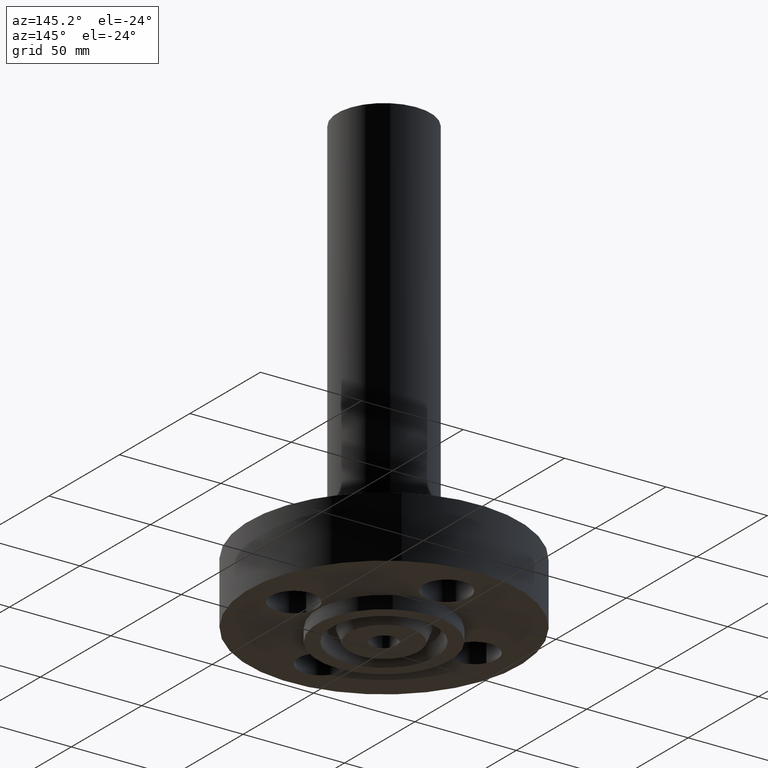
[diagram: clean part render]
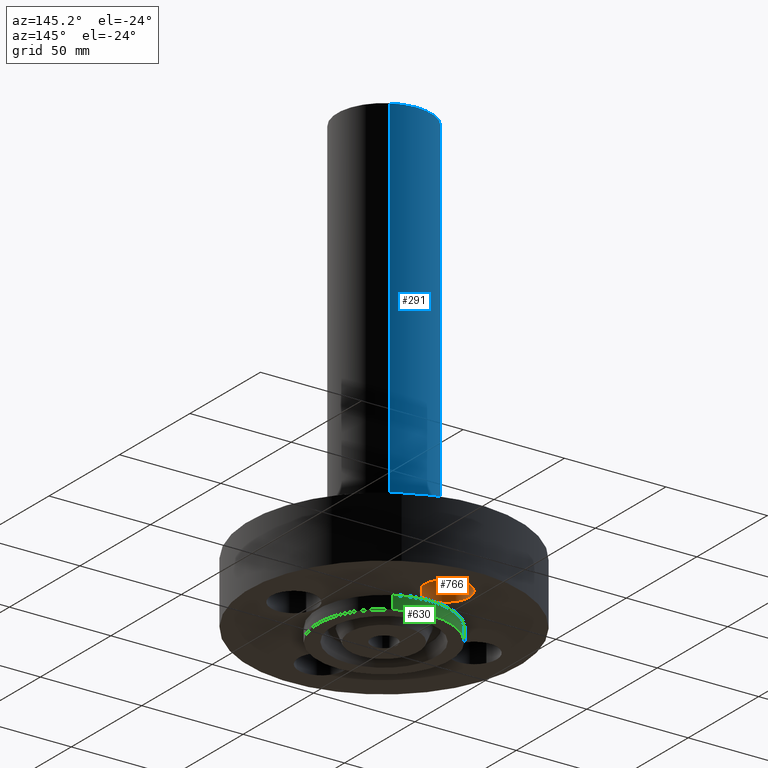
[diagram: same view with three faces highlighted in distinct colors, each labeled with its STEP entity id]
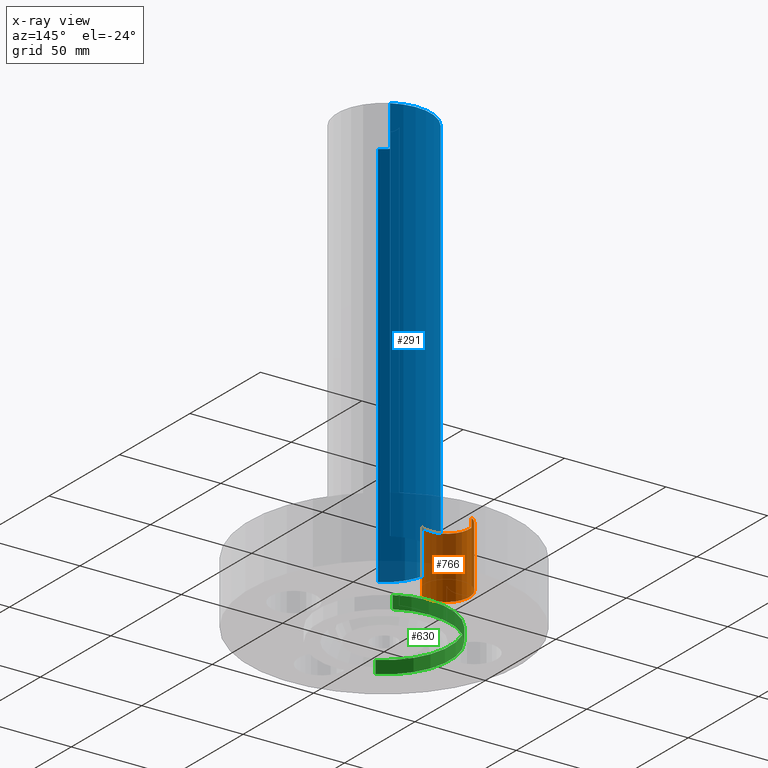
[diagram: x-ray of the same camera — body ghosted, the three highlighted faces saturated]
A machine part, auxiliary view with three faces highlighted in distinct colors.
The next image is the same camera in x-ray (body ghosted, the three faces saturated) — at least one of them is partly hidden behind the body in this view.
Their STEP definitions:

[orange] entity #766 — the highlighted cylindrical surface (edge-blend (fillet) strip) has radius 11.176 mm, axis along (0, 0, 1).
#172=AXIS2_PLACEMENT_3D('Circle Axis2P3D',#170,#171,$) ;
#727=AXIS2_PLACEMENT_3D('Cylinder Axis2P3D',#724,#725,#726) ;
#757=AXIS2_PLACEMENT_3D('Circle Axis2P3D',#755,#756,$) ;
#165=CARTESIAN_POINT('Vertex',(-0.210947236987,2.13613632724,0.)) ;
#167=CARTESIAN_POINT('Vertex',(0.210947236987,1.36386367277,0.)) ;
#170=CARTESIAN_POINT('Axis2P3D Location',(-3.1470888887E-016,1.75000000001,0.)) ;
#724=CARTESIAN_POINT('Axis2P3D Location',(-3.21469784777E-016,1.75000000001,0.00393700787402)) ;
#729=CARTESIAN_POINT('Line Origine',(0.210947236987,1.36386367277,0.595000000002)) ;
#733=CARTESIAN_POINT('Vertex',(0.210947236987,1.36386367277,1.19)) ;
#740=CARTESIAN_POINT('Vertex',(-0.210947236987,2.13613632724,1.19)) ;
#743=CARTESIAN_POINT('Line Origine',(-0.210947236987,2.13613632724,0.595000000002)) ;
#755=CARTESIAN_POINT('Axis2P3D Location',(-3.21469784777E-016,1.75000000001,1.19)) ;
#171=DIRECTION('Axis2P3D Direction',(0.,0.,-0.0393700787402)) ;
#725=DIRECTION('Axis2P3D Direction',(0.,0.,0.0393700787402)) ;
#726=DIRECTION('Axis2P3D XDirection',(-0.0188750212049,0.0345504945626,0.)) ;
#730=DIRECTION('Vector Direction',(0.,0.,0.0393700787402)) ;
#744=DIRECTION('Vector Direction',(0.,0.,0.0393700787402)) ;
#756=DIRECTION('Axis2P3D Direction',(0.,0.,0.0393700787402)) ;
#731=VECTOR('Line Direction',#730,0.0393700787402) ;
#745=VECTOR('Line Direction',#744,0.0393700787402) ;
#761=ORIENTED_EDGE('',*,*,#747,.F.) ;
#762=ORIENTED_EDGE('',*,*,#759,.F.) ;
#763=ORIENTED_EDGE('',*,*,#735,.T.) ;
#764=ORIENTED_EDGE('',*,*,#174,.T.) ;
#766=ADVANCED_FACE('PartBody',(#765),#728,.F.) ;
#173=CIRCLE('generated circle',#172,0.440000000002) ;
#758=CIRCLE('generated circle',#757,0.440000000002) ;
#728=CYLINDRICAL_SURFACE('generated cylinder',#727,0.440000000002) ;
#174=EDGE_CURVE('',#168,#166,#173,.T.) ;
#735=EDGE_CURVE('',#734,#168,#732,.F.) ;
#747=EDGE_CURVE('',#741,#166,#746,.F.) ;
#759=EDGE_CURVE('',#734,#741,#758,.F.) ;
#760=EDGE_LOOP('',(#761,#762,#763,#764)) ;
#765=FACE_OUTER_BOUND('',#760,.T.) ;
#732=LINE('Line',#729,#731) ;
#746=LINE('Line',#743,#745) ;
#166=VERTEX_POINT('',#165) ;
#168=VERTEX_POINT('',#167) ;
#734=VERTEX_POINT('',#733) ;
#741=VERTEX_POINT('',#740) ;

[blue] entity #291 — the highlighted cylindrical surface (partial cylindrical patch) has radius 22.987 mm, axis along (0, 0, -1).
#238=AXIS2_PLACEMENT_3D('Cylinder Axis2P3D',#235,#236,#237) ;
#277=AXIS2_PLACEMENT_3D('Circle Axis2P3D',#275,#276,$) ;
#282=AXIS2_PLACEMENT_3D('Circle Axis2P3D',#280,#281,$) ;
#235=CARTESIAN_POINT('Axis2P3D Location',(0.,0.,4.25000000002)) ;
#244=CARTESIAN_POINT('Vertex',(0.433880112439,0.794212218514,1.19)) ;
#246=CARTESIAN_POINT('Vertex',(-0.433880112439,-0.794212218514,1.19)) ;
#249=CARTESIAN_POINT('Line Origine',(0.433880112439,0.794212218514,4.97000000002)) ;
#253=CARTESIAN_POINT('Vertex',(0.433880112439,0.794212218514,8.75000000004)) ;
#260=CARTESIAN_POINT('Vertex',(-0.433880112439,-0.794212218514,8.75000000004)) ;
#263=CARTESIAN_POINT('Line Origine',(-0.433880112439,-0.794212218514,4.97000000002)) ;
#275=CARTESIAN_POINT('Axis2P3D Location',(0.,0.,1.19)) ;
#280=CARTESIAN_POINT('Axis2P3D Location',(0.,0.,8.75000000004)) ;
#236=DIRECTION('Axis2P3D Direction',(0.,0.,-0.0393700787402)) ;
#237=DIRECTION('Axis2P3D XDirection',(-0.0188750212049,-0.0345504945626,0.)) ;
#250=DIRECTION('Vector Direction',(0.,0.,-0.0393700787402)) ;
#264=DIRECTION('Vector Direction',(0.,0.,-0.0393700787402)) ;
#276=DIRECTION('Axis2P3D Direction',(0.,0.,-0.0393700787402)) ;
#281=DIRECTION('Axis2P3D Direction',(0.,0.,-0.0393700787402)) ;
#251=VECTOR('Line Direction',#250,0.0393700787402) ;
#265=VECTOR('Line Direction',#264,0.0393700787402) ;
#286=ORIENTED_EDGE('',*,*,#279,.F.) ;
#287=ORIENTED_EDGE('',*,*,#267,.T.) ;
#288=ORIENTED_EDGE('',*,*,#284,.T.) ;
#289=ORIENTED_EDGE('',*,*,#255,.F.) ;
#291=ADVANCED_FACE('PartBody',(#290),#239,.T.) ;
#278=CIRCLE('generated circle',#277,0.905000000004) ;
#283=CIRCLE('generated circle',#282,0.905000000004) ;
#239=CYLINDRICAL_SURFACE('generated cylinder',#238,0.905000000004) ;
#255=EDGE_CURVE('',#245,#254,#252,.F.) ;
#267=EDGE_CURVE('',#247,#261,#266,.F.) ;
#279=EDGE_CURVE('',#247,#245,#278,.T.) ;
#284=EDGE_CURVE('',#261,#254,#283,.T.) ;
#285=EDGE_LOOP('',(#286,#287,#288,#289)) ;
#290=FACE_OUTER_BOUND('',#285,.T.) ;
#252=LINE('Line',#249,#251) ;
#266=LINE('Line',#263,#265) ;
#245=VERTEX_POINT('',#244) ;
#247=VERTEX_POINT('',#246) ;
#254=VERTEX_POINT('',#253) ;
#261=VERTEX_POINT('',#260) ;

[green] entity #630 — the highlighted cylindrical surface (partial cylindrical patch) has radius 32.5501 mm, axis along (0, 0, -1).
#118=AXIS2_PLACEMENT_3D('Circle Axis2P3D',#116,#117,$) ;
#588=AXIS2_PLACEMENT_3D('Circle Axis2P3D',#586,#587,$) ;
#612=AXIS2_PLACEMENT_3D('Cylinder Axis2P3D',#609,#610,#611) ;
#111=CARTESIAN_POINT('Vertex',(0.614383827724,1.12462205307,0.)) ;
#113=CARTESIAN_POINT('Vertex',(-0.614383827724,-1.12462205307,0.)) ;
#116=CARTESIAN_POINT('Axis2P3D Location',(0.,0.,0.)) ;
#586=CARTESIAN_POINT('Axis2P3D Location',(0.,0.,-0.250000000001)) ;
#590=CARTESIAN_POINT('Vertex',(-0.614383827724,-1.12462205307,-0.250000000001)) ;
#592=CARTESIAN_POINT('Vertex',(0.614383827724,1.12462205307,-0.250000000001)) ;
#609=CARTESIAN_POINT('Axis2P3D Location',(0.,0.,4.25000000002)) ;
#614=CARTESIAN_POINT('Line Origine',(-0.614383827724,-1.12462205307,-0.125000000001)) ;
#619=CARTESIAN_POINT('Line Origine',(0.614383827724,1.12462205307,-0.125000000001)) ;
#117=DIRECTION('Axis2P3D Direction',(0.,0.,-0.0393700787402)) ;
#587=DIRECTION('Axis2P3D Direction',(0.,0.,-0.0393700787402)) ;
#610=DIRECTION('Axis2P3D Direction',(0.,0.,-0.0393700787402)) ;
#611=DIRECTION('Axis2P3D XDirection',(0.0188750212049,0.0345504945626,0.)) ;
#615=DIRECTION('Vector Direction',(0.,0.,-0.0393700787402)) ;
#620=DIRECTION('Vector Direction',(0.,0.,-0.0393700787402)) ;
#616=VECTOR('Line Direction',#615,0.0393700787402) ;
#621=VECTOR('Line Direction',#620,0.0393700787402) ;
#625=ORIENTED_EDGE('',*,*,#594,.F.) ;
#626=ORIENTED_EDGE('',*,*,#618,.T.) ;
#627=ORIENTED_EDGE('',*,*,#120,.T.) ;
#628=ORIENTED_EDGE('',*,*,#623,.F.) ;
#630=ADVANCED_FACE('PartBody',(#629),#613,.T.) ;
#119=CIRCLE('generated circle',#118,1.28150000001) ;
#589=CIRCLE('generated circle',#588,1.28150000001) ;
#613=CYLINDRICAL_SURFACE('generated cylinder',#612,1.28150000001) ;
#120=EDGE_CURVE('',#114,#112,#119,.T.) ;
#594=EDGE_CURVE('',#591,#593,#589,.T.) ;
#618=EDGE_CURVE('',#591,#114,#617,.F.) ;
#623=EDGE_CURVE('',#593,#112,#622,.F.) ;
#624=EDGE_LOOP('',(#625,#626,#627,#628)) ;
#629=FACE_OUTER_BOUND('',#624,.T.) ;
#617=LINE('Line',#614,#616) ;
#622=LINE('Line',#619,#621) ;
#112=VERTEX_POINT('',#111) ;
#114=VERTEX_POINT('',#113) ;
#591=VERTEX_POINT('',#590) ;
#593=VERTEX_POINT('',#592) ;